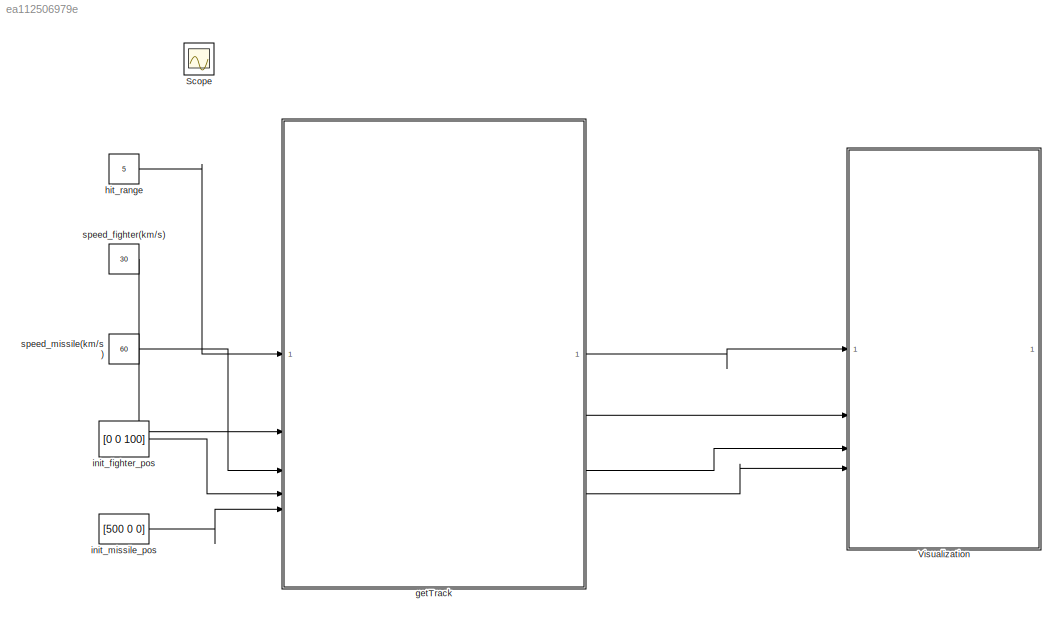
MODEL slx_ea112506979e
KIND model
CONFIG AbsTol = auto
CONFIG EnableMultiTasking = off
CONFIG FixedStep = auto
CONFIG MaxStep = auto
CONFIG MinStep = auto
CONFIG RelTol = 1e-3
CONFIG SampleTimeConstraint = Unconstrained
CONFIG SolverName = VariableStepAuto
CONFIG StartTime = 0.0
CONFIG StopTime = 10
BLOCK [Scope] Scope
  Floating = off
  IOType = viewer
  NumInputPorts = 1
  ScopeSpecificationString = Simulink.scopes.TimeScopeBlockCfg('CurrentConfiguration', extmgr.ConfigurationSet(extmgr.Configuration('Core','General UI',true),extmgr.Configuration('Core','Source UI',true),extmgr.Configuration('Sources','WiredSimulink',true),extmgr.Configuration('Visuals','Time Domain',true,'SerializedDisplays',{struct('MinYLimReal','-0.03332','MaxYLimReal','0.11167','YLabelReal','','MinYLimMag','0.00000','MaxY...<+1529ch>
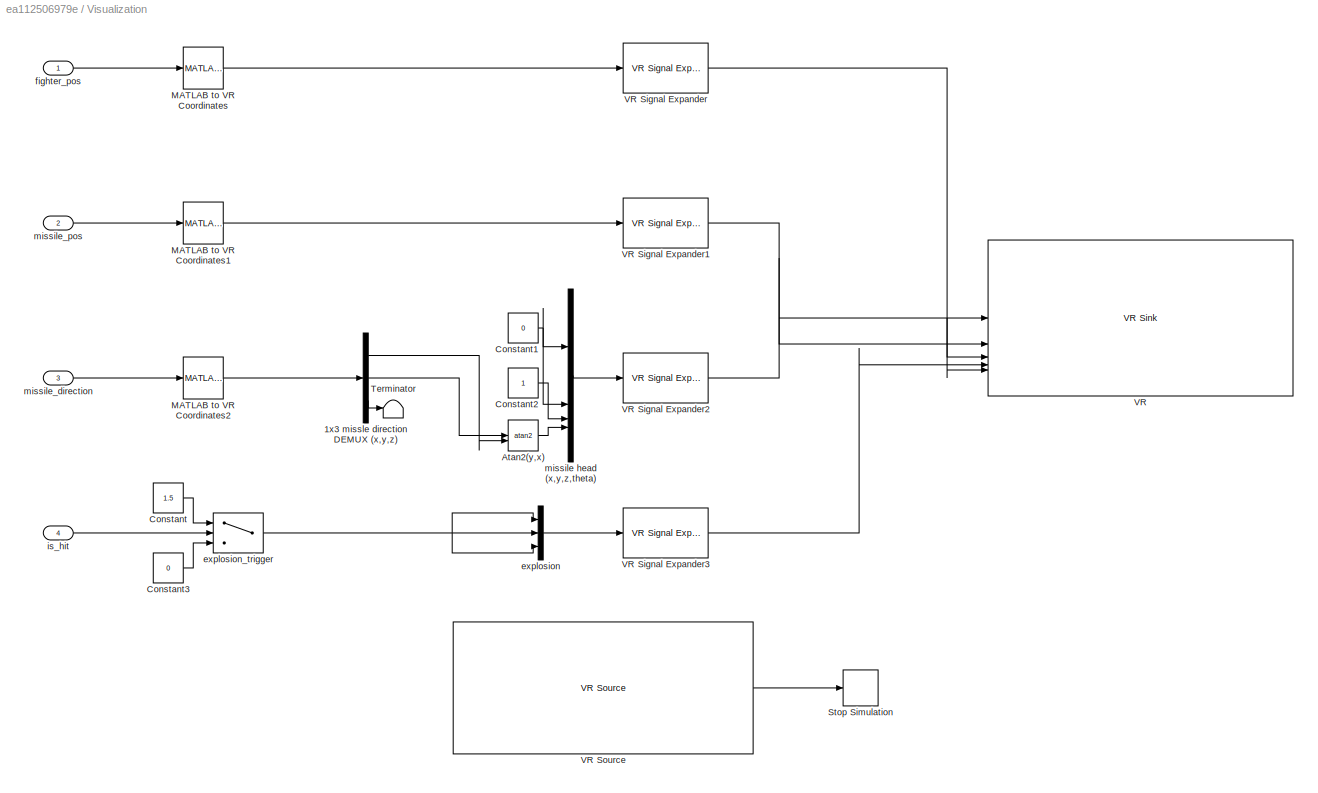
BLOCK [SubSystem] Visualization
BLOCK [Demux] Visualization/1x3 missle direction DEMUX (x,y,z)
  Outputs = 3
BLOCK [Trigonometry] Visualization/Atan2(y,x)
  Operator = atan2
BLOCK [Constant] Visualization/Constant
  Value = 1.5
BLOCK [Constant] Visualization/Constant1
  Value = 0
BLOCK [Constant] Visualization/Constant2
BLOCK [Constant] Visualization/Constant3
  Value = 0
BLOCK [Reference] Visualization/MATLAB to VR Coordinates  REF=vrlib/Utilities/MATLAB to
VR Coordinates
  SourceBlock = vrlib/Utilities/MATLAB to\nVR Coordinates
  SourceType = MATLAB to VR Coordinates
BLOCK [Reference] Visualization/MATLAB to VR Coordinates1  REF=vrlib/Utilities/MATLAB to
VR Coordinates
  SourceBlock = vrlib/Utilities/MATLAB to\nVR Coordinates
  SourceType = MATLAB to VR Coordinates
BLOCK [Reference] Visualization/MATLAB to VR Coordinates2  REF=vrlib/Utilities/MATLAB to
VR Coordinates
  SourceBlock = vrlib/Utilities/MATLAB to\nVR Coordinates
  SourceType = MATLAB to VR Coordinates
BLOCK [Stop] Visualization/Stop Simulation
BLOCK [Terminator] Visualization/Terminator
BLOCK [Reference] Visualization/VR  REF=vrlib/VR Sink
  InstantiateOnLoad = on
  SourceBlock = vrlib/VR Sink
  SourceType = Virtual Reality Sink
BLOCK [Reference] Visualization/VR Signal Expander  REF=vrlib/VR Signal Expander
  SourceBlock = vrlib/VR Signal Expander
  SourceType = VR Signal Expander
BLOCK [Reference] Visualization/VR Signal Expander1  REF=vrlib/VR Signal Expander
  SourceBlock = vrlib/VR Signal Expander
  SourceType = VR Signal Expander
BLOCK [Reference] Visualization/VR Signal Expander2  REF=vrlib/VR Signal Expander
  SourceBlock = vrlib/VR Signal Expander
  SourceType = VR Signal Expander
BLOCK [Reference] Visualization/VR Signal Expander3  REF=vrlib/VR Signal Expander
  SourceBlock = vrlib/VR Signal Expander
  SourceType = VR Signal Expander
BLOCK [Reference] Visualization/VR Source  REF=vrlib/VR Source
  InstantiateOnLoad = on
  SourceBlock = vrlib/VR Source
  SourceType = Virtual Reality Source
BLOCK [Mux] Visualization/explosion
  DisplayOption = bar
  Inputs = 3
BLOCK [Switch] Visualization/explosion_trigger
  Criteria = u2 ~= 0
  InputSameDT = off
  SaturateOnIntegerOverflow = off
BLOCK [Inport] Visualization/fighter_pos
BLOCK [Inport] Visualization/is_hit
  Port = 4
BLOCK [Mux] Visualization/missile head (x,y,z,theta)
  DisplayOption = bar
BLOCK [Inport] Visualization/missile_direction
  Port = 3
BLOCK [Inport] Visualization/missile_pos
  Port = 2
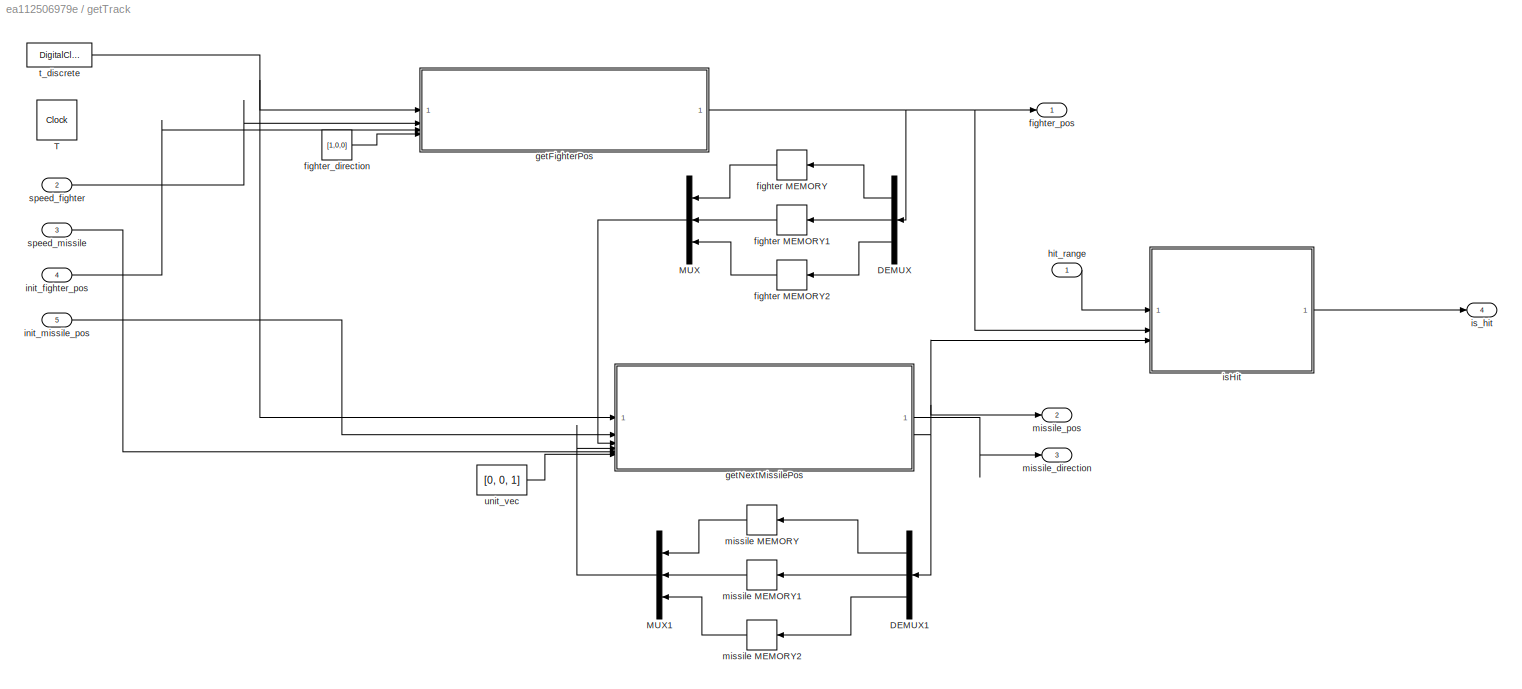
BLOCK [SubSystem] getTrack
BLOCK [Demux] getTrack/DEMUX
  Outputs = 3
BLOCK [Demux] getTrack/DEMUX1
  Outputs = 3
BLOCK [Mux] getTrack/MUX
  DisplayOption = bar
  Inputs = 3
BLOCK [Mux] getTrack/MUX1
  DisplayOption = bar
  Inputs = 3
BLOCK [Clock] getTrack/T
BLOCK [Memory] getTrack/fighter MEMORY
  InheritSampleTime = on
BLOCK [Memory] getTrack/fighter MEMORY1
  InheritSampleTime = on
BLOCK [Memory] getTrack/fighter MEMORY2
  InheritSampleTime = on
BLOCK [Constant] getTrack/fighter_direction
  Value = [1,0,0]
BLOCK [Outport] getTrack/fighter_pos
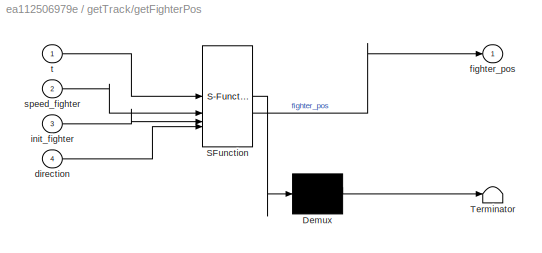
BLOCK [SubSystem] getTrack/getFighterPos
  ErrorFcn = Stateflow.Translate.translate
  LibrarySourceBlock = simulink/User-Defined\nFunctions/MATLAB Function
  PermitHierarchicalResolution = ExplicitOnly
  SFBlockType = MATLAB Function
  TreatAsAtomicUnit = on
BLOCK [Demux] getTrack/getFighterPos/ Demux 
  Outputs = 1
BLOCK [S-Function] getTrack/getFighterPos/ SFunction 
  EnableBusSupport = on
  FunctionName = sf_sfun
  PortCounts = [4 2]
  SFcnIsStateOwnerBlock = off
  SFunctionDeploymentMode = off
  Tag = Stateflow S-Function 4
BLOCK [Terminator] getTrack/getFighterPos/ Terminator 
BLOCK [Inport] getTrack/getFighterPos/direction
  Port = 4
BLOCK [Outport] getTrack/getFighterPos/fighter_pos
BLOCK [Inport] getTrack/getFighterPos/init_fighter
  Port = 3
BLOCK [Inport] getTrack/getFighterPos/speed_fighter
  Port = 2
BLOCK [Inport] getTrack/getFighterPos/t
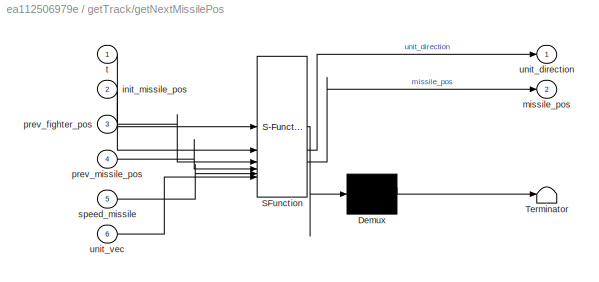
BLOCK [SubSystem] getTrack/getNextMissilePos
  ErrorFcn = Stateflow.Translate.translate
  LibrarySourceBlock = simulink/User-Defined\nFunctions/MATLAB Function
  PermitHierarchicalResolution = ExplicitOnly
  SFBlockType = MATLAB Function
  TreatAsAtomicUnit = on
BLOCK [Demux] getTrack/getNextMissilePos/ Demux 
  Outputs = 1
BLOCK [S-Function] getTrack/getNextMissilePos/ SFunction 
  EnableBusSupport = on
  FunctionName = sf_sfun
  PortCounts = [6 3]
  SFcnIsStateOwnerBlock = off
  SFunctionDeploymentMode = off
  Tag = Stateflow S-Function 5
BLOCK [Terminator] getTrack/getNextMissilePos/ Terminator 
BLOCK [Inport] getTrack/getNextMissilePos/init_missile_pos
  Port = 2
BLOCK [Outport] getTrack/getNextMissilePos/missile_pos
  Port = 2
BLOCK [Inport] getTrack/getNextMissilePos/prev_fighter_pos
  Port = 3
BLOCK [Inport] getTrack/getNextMissilePos/prev_missile_pos
  Port = 4
BLOCK [Inport] getTrack/getNextMissilePos/speed_missile
  Port = 5
BLOCK [Inport] getTrack/getNextMissilePos/t
BLOCK [Outport] getTrack/getNextMissilePos/unit_direction
BLOCK [Inport] getTrack/getNextMissilePos/unit_vec
  Port = 6
BLOCK [Inport] getTrack/hit_range
BLOCK [Inport] getTrack/init_fighter_pos
  Port = 4
BLOCK [Inport] getTrack/init_missile_pos
  Port = 5
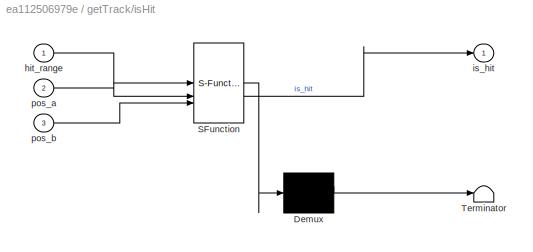
BLOCK [SubSystem] getTrack/isHit
  ErrorFcn = Stateflow.Translate.translate
  LibrarySourceBlock = simulink/User-Defined\nFunctions/MATLAB Function
  PermitHierarchicalResolution = ExplicitOnly
  SFBlockType = MATLAB Function
  TreatAsAtomicUnit = on
BLOCK [Demux] getTrack/isHit/ Demux 
  Outputs = 1
BLOCK [S-Function] getTrack/isHit/ SFunction 
  EnableBusSupport = on
  FunctionName = sf_sfun
  PortCounts = [3 2]
  SFcnIsStateOwnerBlock = off
  SFunctionDeploymentMode = off
  Tag = Stateflow S-Function 2
BLOCK [Terminator] getTrack/isHit/ Terminator 
BLOCK [Inport] getTrack/isHit/hit_range
BLOCK [Outport] getTrack/isHit/is_hit
BLOCK [Inport] getTrack/isHit/pos_a
  Port = 2
BLOCK [Inport] getTrack/isHit/pos_b
  Port = 3
BLOCK [Outport] getTrack/is_hit
  Port = 4
BLOCK [Memory] getTrack/missile MEMORY
  InheritSampleTime = on
BLOCK [Memory] getTrack/missile MEMORY1
  InheritSampleTime = on
BLOCK [Memory] getTrack/missile MEMORY2
  InheritSampleTime = on
BLOCK [Outport] getTrack/missile_direction
  Port = 3
BLOCK [Outport] getTrack/missile_pos
  Port = 2
BLOCK [Inport] getTrack/speed_fighter
  Port = 2
BLOCK [Inport] getTrack/speed_missile
  Port = 3
BLOCK [DigitalClock] getTrack/t_discrete
  SampleTime = 0.001
BLOCK [Constant] getTrack/unit_vec
  Value = [0, 0, 1]
BLOCK [Constant] hit_range
  Value = 5
BLOCK [Constant] init_fighter_pos
  Value = [0 0 100]
BLOCK [Constant] init_missile_pos
  Value = [500 0 0]
BLOCK [Constant] speed_fighter(km//s)
  Value = 30
BLOCK [Constant] speed_missile(km//s)
  Value = 60
LINE Visualization/1x3 missle direction DEMUX (x,y,z):1 -> Visualization/Atan2(y,x):2
LINE Visualization/1x3 missle direction DEMUX (x,y,z):2 -> Visualization/Atan2(y,x):1
LINE Visualization/1x3 missle direction DEMUX (x,y,z):3 -> Visualization/Terminator:1
LINE Visualization/Atan2(y,x):1 -> Visualization/missile head (x,y,z,theta):4
NET Visualization/Constant1:1 -> Visualization/missile head (x,y,z,theta):1, Visualization/missile head (x,y,z,theta):2
LINE Visualization/Constant2:1 -> Visualization/missile head (x,y,z,theta):3
LINE Visualization/Constant3:1 -> Visualization/explosion_trigger:3
LINE Visualization/Constant:1 -> Visualization/explosion_trigger:1
LINE Visualization/MATLAB to VR Coordinates1:1 -> Visualization/VR Signal Expander1:1
LINE Visualization/MATLAB to VR Coordinates2:1 -> Visualization/1x3 missle direction DEMUX (x,y,z):1
LINE Visualization/MATLAB to VR Coordinates:1 -> Visualization/VR Signal Expander:1
LINE Visualization/VR Signal Expander1:1 -> Visualization/VR:2
LINE Visualization/VR Signal Expander2:1 -> Visualization/VR:1
LINE Visualization/VR Signal Expander3:1 -> Visualization/VR:4
NET Visualization/VR Signal Expander:1 -> Visualization/VR:3, Visualization/VR:5
LINE Visualization/VR Source:1 -> Visualization/Stop Simulation:1
LINE Visualization/explosion:1 -> Visualization/VR Signal Expander3:1
NET Visualization/explosion_trigger:1 -> Visualization/explosion:1, Visualization/explosion:2, Visualization/explosion:3
LINE Visualization/fighter_pos:1 -> Visualization/MATLAB to VR Coordinates:1
LINE Visualization/is_hit:1 -> Visualization/explosion_trigger:2
LINE Visualization/missile head (x,y,z,theta):1 -> Visualization/VR Signal Expander2:1
LINE Visualization/missile_direction:1 -> Visualization/MATLAB to VR Coordinates2:1
LINE Visualization/missile_pos:1 -> Visualization/MATLAB to VR Coordinates1:1
LINE getTrack/DEMUX1:1 -> getTrack/missile MEMORY:1
LINE getTrack/DEMUX1:2 -> getTrack/missile MEMORY1:1
LINE getTrack/DEMUX1:3 -> getTrack/missile MEMORY2:1
LINE getTrack/DEMUX:1 -> getTrack/fighter MEMORY:1
LINE getTrack/DEMUX:2 -> getTrack/fighter MEMORY1:1
LINE getTrack/DEMUX:3 -> getTrack/fighter MEMORY2:1
LINE getTrack/MUX1:1 -> getTrack/getNextMissilePos:4
LINE getTrack/MUX:1 -> getTrack/getNextMissilePos:3
LINE getTrack/fighter MEMORY1:1 -> getTrack/MUX:2
LINE getTrack/fighter MEMORY2:1 -> getTrack/MUX:3
LINE getTrack/fighter MEMORY:1 -> getTrack/MUX:1
LINE getTrack/fighter_direction:1 -> getTrack/getFighterPos:4
NET getTrack/getFighterPos:1 -> getTrack/DEMUX:1, getTrack/fighter_pos:1, getTrack/isHit:2
LINE getTrack/getNextMissilePos:1 -> getTrack/missile_direction:1
NET getTrack/getNextMissilePos:2 -> getTrack/DEMUX1:1, getTrack/isHit:3, getTrack/missile_pos:1
LINE getTrack/hit_range:1 -> getTrack/isHit:1
LINE getTrack/init_fighter_pos:1 -> getTrack/getFighterPos:3
LINE getTrack/init_missile_pos:1 -> getTrack/getNextMissilePos:2
LINE getTrack/isHit:1 -> getTrack/is_hit:1
LINE getTrack/missile MEMORY1:1 -> getTrack/MUX1:2
LINE getTrack/missile MEMORY2:1 -> getTrack/MUX1:3
LINE getTrack/missile MEMORY:1 -> getTrack/MUX1:1
LINE getTrack/speed_fighter:1 -> getTrack/getFighterPos:2
LINE getTrack/speed_missile:1 -> getTrack/getNextMissilePos:5
NET getTrack/t_discrete:1 -> getTrack/getFighterPos:1, getTrack/getNextMissilePos:1
LINE getTrack/unit_vec:1 -> getTrack/getNextMissilePos:6
LINE getTrack:1 -> Visualization:1
LINE getTrack:2 -> Visualization:2
LINE getTrack:3 -> Visualization:3
LINE getTrack:4 -> Visualization:4
LINE hit_range:1 -> getTrack:1
LINE init_fighter_pos:1 -> getTrack:4
LINE init_missile_pos:1 -> getTrack:5
LINE speed_fighter(km//s):1 -> getTrack:2
LINE speed_missile(km//s):1 -> getTrack:3
note: NET lines group one-source signal fan-out (src -> all destinations, sorted); 1:1 wires keep LINE
CHART getTrack/isHit states=1 transitions=1
  STATE_LABEL 'eML_blk_kernel()'
  STATE_LABEL 'SCRIPT:\nfunction is_hit = isHit(hit_range, pos_a, pos_b)\n    is_hit = 0;\n    distance = norm(pos_a - pos_b);\n\n    if (distance <= hit_range)\n        is_hit = 1;\n    end\nend\n'
CHART getTrack/getFighterPos states=1 transitions=1
  STATE_LABEL 'eML_blk_kernel()'
  STATE_LABEL 'SCRIPT:\nfunction fighter_pos = getFighterPos(t,speed_fighter,init_fighter,direction)\n    position = init_fighter + t*direction*speed_fighter; %전투기의 위치를 속도와 시간에 따라 재설정\nfighter_pos = position;\nend'
CHART getTrack/getNextMissilePos states=1 transitions=1
  STATE_LABEL 'eML_blk_kernel()'
  STATE_LABEL 'SCRIPT:\nfunction [unit_direction, missile_pos] = getNextMissilePos(t, init_missile_pos, prev_fighter_pos, prev_missile_pos, speed_missile, unit_vec)\n% 방향벡터에 미사일 속도를 적용\nif (t==0) %초기값\n    missile_pos = init_missile_pos;\n    unit_direction = unit_vec;\nelse\n    direction = (prev_fighter_pos - prev_missile_pos); %미사일 방향벡터\n    unit_direction = (direction)/norm(direction);\n    missile_pos = prev_missile...<+55ch>'
CHART  states=0 transitions=0
CHART  states=0 transitions=0
CHART  states=0 transitions=0
